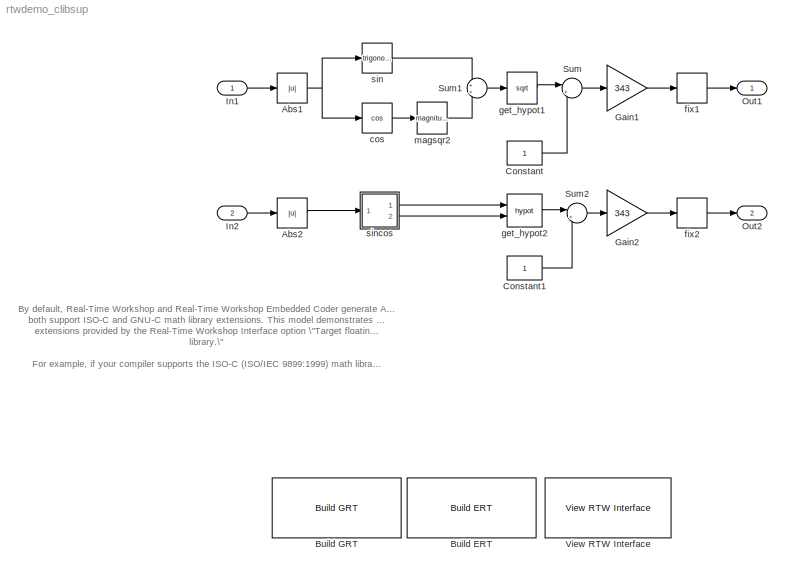
MODEL rtwdemo_clibsup
KIND model
BLOCK [Abs] Abs1
BLOCK [Abs] Abs2
BLOCK [Reference] Build ERT  REF=rtwdemowidgets/Build ERT
  Ports = []
  ShowPortLabels = on
  SourceBlock = rtwdemowidgets/Build ERT
  attrib_overrides = {'GenFloatMathFcnCalls'}
BLOCK [Reference] Build GRT  REF=rtwdemowidgets/Build GRT
  Ports = []
  ShowPortLabels = on
  SourceBlock = rtwdemowidgets/Build GRT
  attrib_overrides = {'GenFloatMathFcnCalls'}
BLOCK [Constant] Constant
  OutDataTypeMode = Inherit via back propagation
BLOCK [Constant] Constant1
  OutDataTypeMode = Inherit via back propagation
BLOCK [Gain] Gain1
  Gain = 343
BLOCK [Gain] Gain2
  Gain = 343
BLOCK [Inport] In1
  DataType = single
  IconDisplay = Port number
  LatchInput = off
  Port = 1
  SampleTime = 1
BLOCK [Inport] In2
  DataType = single
  IconDisplay = Port number
  LatchInput = off
  Port = 2
  SampleTime = 1
BLOCK [Outport] Out1
  BusOutputAsStruct = off
  IconDisplay = Port number
BLOCK [Outport] Out2
  BusOutputAsStruct = off
  IconDisplay = Port number
  Port = 2
BLOCK [Sum] Sum
  IconShape = round
  Inputs = |+-
  Ports = [2, 1]
BLOCK [Sum] Sum1
  IconShape = round
  Ports = [2, 1]
BLOCK [Sum] Sum2
  IconShape = round
  Inputs = |+-
  Ports = [2, 1]
BLOCK [Reference] View RTW Interface  REF=rtwdemowidgets/View RTW Interface
  Ports = []
  ShowPortLabels = on
  SourceBlock = rtwdemowidgets/View RTW Interface
BLOCK [Trigonometry] cos
  Operator = cos
  Ports = [1, 1]
BLOCK [Rounding] fix1
  Operator = fix
BLOCK [Rounding] fix2
BLOCK [Math] get_hypot1
  Operator = sqrt
  Ports = [1, 1]
BLOCK [Math] get_hypot2
  Operator = hypot
  Ports = [2, 1]
BLOCK [Math] magsqr2
  Operator = magnitude^2
  Ports = [1, 1]
BLOCK [Trigonometry] sin
  Ports = [1, 1]
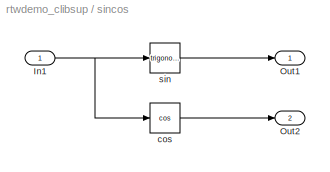
BLOCK [SubSystem] sincos
  MaskDisplay = text(0.5,0.5,'sincos','horizontalAlignment','center')
  MaskIconFrame = on
  MaskIconOpaque = on
  MaskIconRotate = none
  MaskIconUnits = normalized
  MinAlgLoopOccurrences = off
  Ports = [1, 2]
  PropExecContextAcrossSSBoundary = on
  RTWSystemCode = Auto
  TreatAsAtomicUnit = off
BLOCK [Inport] sincos/In1
  IconDisplay = Port number
  LatchInput = off
  Port = 1
BLOCK [Outport] sincos/Out1
  BusOutputAsStruct = off
  IconDisplay = Port number
BLOCK [Outport] sincos/Out2
  BusOutputAsStruct = off
  IconDisplay = Port number
  Port = 2
BLOCK [Trigonometry] sincos/cos
  Operator = cos
  Ports = [1, 1]
BLOCK [Trigonometry] sincos/sin
  Ports = [1, 1]
ANNOTATION (root): By default, Real-Time Workshop and Real-Time Workshop Embedded Coder generate ANSI-C code, and\nboth support ISO-C and GNU-C math library extensions. This model demonstrates math library\nextensions provided by the Real-Time Workshop Interface option \"Target floating point math\nlibrary.\"\n\nFor example, if your compiler supports the ISO-C (ISO/IEC 9899:1999) math library, calls to\nthe ISO-C fu...<+197ch>
NET Abs1:1 -> cos:1, sin:1
LINE Abs2:1 -> sincos:1
LINE Constant1:1 -> Sum2:2
LINE Constant:1 -> Sum:2
LINE Gain1:1 -> fix1:1
LINE Gain2:1 -> fix2:1
LINE In1:1 -> Abs1:1
LINE In2:1 -> Abs2:1
LINE Sum1:1 -> get_hypot1:1
LINE Sum2:1 -> Gain2:1
LINE Sum:1 -> Gain1:1
LINE cos:1 -> magsqr2:1
LINE fix1:1 -> Out1:1
LINE fix2:1 -> Out2:1
LINE get_hypot1:1 -> Sum:1
LINE get_hypot2:1 -> Sum2:1
LINE magsqr2:1 -> Sum1:2
LINE sin:1 -> Sum1:1
NET sincos/In1:1 -> sincos/cos:1, sincos/sin:1
LINE sincos/cos:1 -> sincos/Out2:1
LINE sincos/sin:1 -> sincos/Out1:1
LINE sincos:1 -> get_hypot2:1
LINE sincos:2 -> get_hypot2:2
note: NET lines group one-source signal fan-out (src -> all destinations, sorted); 1:1 wires keep LINE
